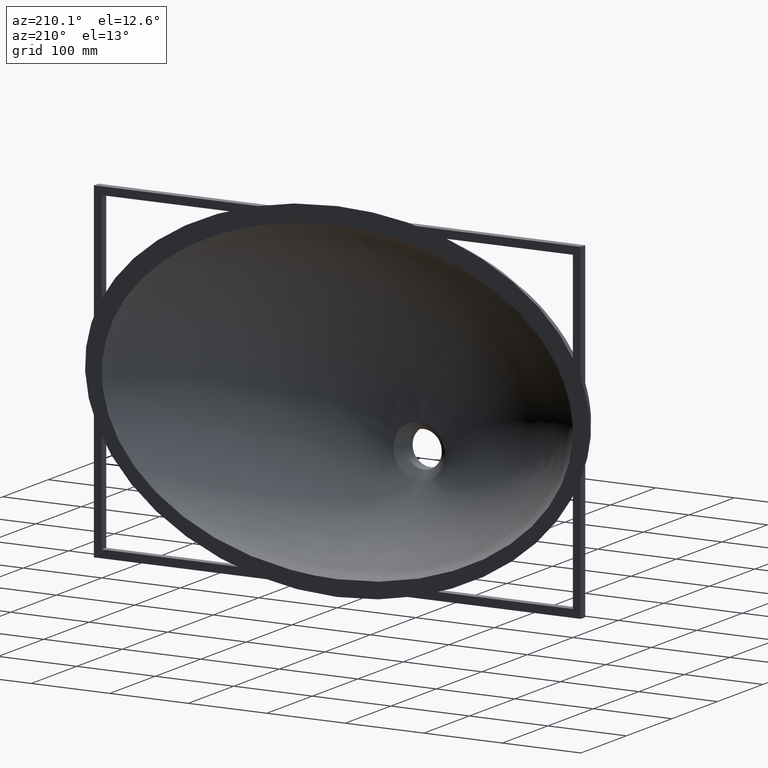
[diagram: clean part render]
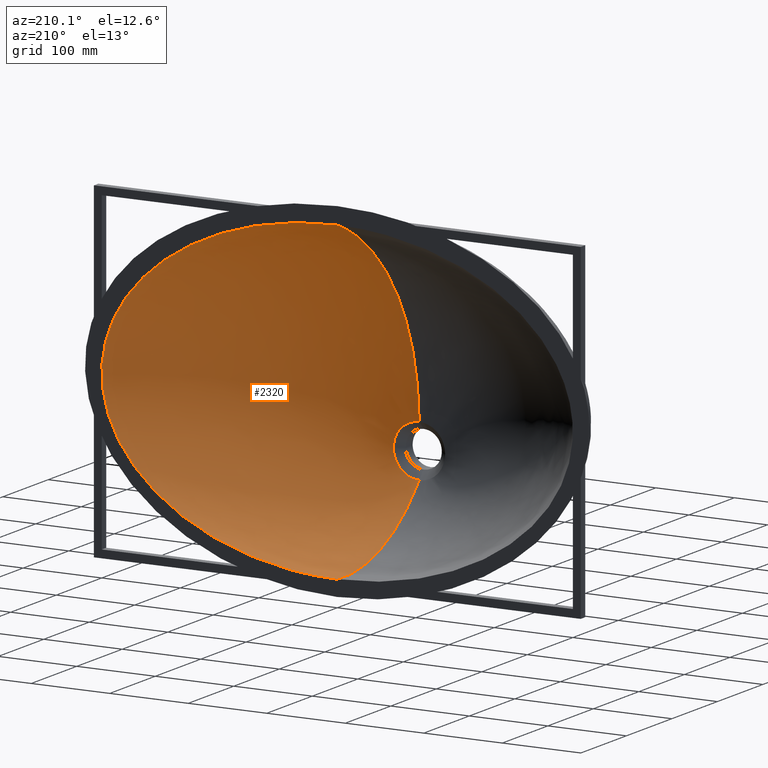
[diagram: same view with one face highlighted and labeled with its STEP entity id]
A machine part, auxiliary view. The second image highlights one B-rep face of the part: STEP entity #2320.
In plain terms, the highlighted face is a freeform B-spline surface patch.
Its self-contained STEP definition (entity closure, byte-faithful):
#13 = CARTESIAN_POINT ( 'NONE',  ( 30.62851679631153700, -97.37927551791051400, 144.0688061698451700 ) ) ;
#17 = CARTESIAN_POINT ( 'NONE',  ( 133.0484152298465700, 0.0000000000000000000, -180.0992919159568300 ) ) ;
#29 = CARTESIAN_POINT ( 'NONE',  ( -23.68704373531275200, 0.0000000000000000000, -199.7357332564771500 ) ) ;
#40 = CARTESIAN_POINT ( 'NONE',  ( 141.6678652974461000, -160.6817231114279100, -34.63989863947544700 ) ) ;
#58 = CARTESIAN_POINT ( 'NONE',  ( -44.77001884066132200, -161.9825538305535700, 48.43875581491031600 ) ) ;
#75 = CARTESIAN_POINT ( 'NONE',  ( 3.947687083879967100, 0.0000000000000000000, -199.9999999999999400 ) ) ;
#93 = CARTESIAN_POINT ( 'NONE',  ( -113.9103814101593500, -163.3450816644534600, 12.93355137761201600 ) ) ;
#100 = CARTESIAN_POINT ( 'NONE',  ( 160.5146964287965000, -39.54910153398023500, -165.5320030992913900 ) ) ;
#107 = CARTESIAN_POINT ( 'NONE',  ( -6.362098348144940000E-013, 0.0000000000000000000, -199.9999999999999400 ) ) ;
#117 = CARTESIAN_POINT ( 'NONE',  ( -213.5339019161863500, 0.0000000000000000000, 142.3539857734975600 ) ) ;
#143 = CARTESIAN_POINT ( 'NONE',  ( -37.27941684999111500, -179.7290180102834500, -6.896853647755000000 ) ) ;
#160 = CARTESIAN_POINT ( 'NONE',  ( 270.1489477475109300, 0.0000000000000000000, 88.69899296314076800 ) ) ;
#202 = CARTESIAN_POINT ( 'NONE',  ( 230.4484406398126200, -92.38385585762428300, -64.07311742500880300 ) ) ;
#212 = CARTESIAN_POINT ( 'NONE',  ( -6.362098348144940000E-013, 0.0000000000000000000, -199.9999999999999400 ) ) ;
#217 = CARTESIAN_POINT ( 'NONE',  ( 299.2574925619122700, 0.0000000000000000000, 23.02731537193677600 ) ) ;
#220 = CARTESIAN_POINT ( 'NONE',  ( -2.771184904616170300, -179.0625244724810700, -0.8907801591708891500 ) ) ;
#229 = CARTESIAN_POINT ( 'NONE',  ( 23.59494529622731600, -180.0000000000001700, -113.3876014543634300 ) ) ;
#239 = CARTESIAN_POINT ( 'NONE',  ( 32.42873320077608000, -180.0000000000014500, -83.07162615420222100 ) ) ;
#254 = CARTESIAN_POINT ( 'NONE',  ( -7.666800387143238600, -157.8209052816051800, -149.1971891307944100 ) ) ;
#270 = CARTESIAN_POINT ( 'NONE',  ( 292.5809894682097400, 0.0000000000000000000, -52.59516732166746800 ) ) ;
#283 = CARTESIAN_POINT ( 'NONE',  ( -30.42152481965786100, -180.0000000000008800, -76.93615707423647600 ) ) ;
#298 = CARTESIAN_POINT ( 'NONE',  ( 300.7422975368905300, 0.0000000000000000000, -16.44808241169922500 ) ) ;
#312 = CARTESIAN_POINT ( 'NONE',  ( -3.358083169826622200, -180.0000000000000000, -122.9239631104298800 ) ) ;
#314 = CARTESIAN_POINT ( 'NONE',  ( -21.71245729774489800, -34.44061058370849100, -201.8489340728664800 ) ) ;
#330 = CARTESIAN_POINT ( 'NONE',  ( -2.817082504769086200E-011, -157.7759367792934000, -149.3375365825513400 ) ) ;
#332 = CARTESIAN_POINT ( 'NONE',  ( 0.001907116680566409800, -161.4601590922618500, 53.27787706992665300 ) ) ;
#343 = CARTESIAN_POINT ( 'NONE',  ( -76.89923280782765900, -70.60404970947662700, -186.6803127599805200 ) ) ;
#356 = CARTESIAN_POINT ( 'NONE',  ( -210.7306577532258100, -100.1828451426668900, 54.25402693778501400 ) ) ;
#368 = CARTESIAN_POINT ( 'NONE',  ( -38.27833739842476000, -97.45881928544704900, 143.2520732158170300 ) ) ;
#373 = CARTESIAN_POINT ( 'NONE',  ( 175.1323095684038500, 0.0000000000000000000, -163.2848421583269400 ) ) ;
#391 = CARTESIAN_POINT ( 'NONE',  ( -53.16030504817634000, 0.0000000000000000000, -197.3820846924904800 ) ) ;
#401 = CARTESIAN_POINT ( 'NONE',  ( 126.2090113669983000, -163.0597354177518500, -0.9439889273431415500 ) ) ;
#415 = CARTESIAN_POINT ( 'NONE',  ( -81.05383703113876900, -162.8721174194236000, 35.48709314873519800 ) ) ;
#431 = CARTESIAN_POINT ( 'NONE',  ( 17.21520042557200000, -158.2118810375539200, -147.9587899117662200 ) ) ;
#439 = CARTESIAN_POINT ( 'NONE',  ( 246.0829249203361800, -54.91539842589114800, 75.84437400029945300 ) ) ;
#450 = CARTESIAN_POINT ( 'NONE',  ( -136.6552091126917200, -162.2653466515104100, -17.63439621009438300 ) ) ;
#454 = CARTESIAN_POINT ( 'NONE',  ( 120.8864409390117800, -53.21082431389606900, 161.3172787664667900 ) ) ;
#468 = CARTESIAN_POINT ( 'NONE',  ( -270.1489477475099600, 0.0000000000000000000, 88.69899296314172000 ) ) ;
#494 = CARTESIAN_POINT ( 'NONE',  ( 88.53231294492513800, -174.2994084901815500, -83.11848532869626600 ) ) ;
#506 = EDGE_CURVE ( 'NONE', #1978, #2625, #2274, .T. ) ;
#513 = CARTESIAN_POINT ( 'NONE',  ( 133.0484894441825600, 0.0000000000000000000, 180.0992985005259500 ) ) ;
#573 = CARTESIAN_POINT ( 'NONE',  ( 292.5809894682097400, 0.0000000000000000000, -52.59516732166746800 ) ) ;
#576 = CARTESIAN_POINT ( 'NONE',  ( -3.366892268458210300E-011, -180.0000000000000000, -123.0000000000000000 ) ) ;
#583 = CARTESIAN_POINT ( 'NONE',  ( 53.16030504817469900, 0.0000000000000000000, -197.3820846924896000 ) ) ;
#590 = CARTESIAN_POINT ( 'NONE',  ( 32.46289889102562400, -179.9999999999999100, -96.65392954724447300 ) ) ;
#604 = CARTESIAN_POINT ( 'NONE',  ( -82.97589318563584000, -171.1174015192978000, -98.10234112503286500 ) ) ;
#613 = B_SPLINE_CURVE_WITH_KNOTS ( 'NONE', 3,
 ( #4383, #2306, #2511, #2650, #890, #1103 ),
 .UNSPECIFIED., .F., .F.,
 ( 4, 2, 4 ),
 ( 0.0000000000000000000, 0.5000000000000002200, 1.000000000000000000 ),
 .UNSPECIFIED. ) ;
#614 = CARTESIAN_POINT ( 'NONE',  ( 79.83662190680274800, -52.65717524612522000, 173.0229932725299300 ) ) ;
#622 = CARTESIAN_POINT ( 'NONE',  ( 7.827853848500442500, -180.0000000000000600, -57.83467544628651800 ) ) ;
#638 = CARTESIAN_POINT ( 'NONE',  ( -33.42517482253837400, -179.9999999999996600, -89.38040627222362400 ) ) ;
#664 = CARTESIAN_POINT ( 'NONE',  ( -0.5591509092855130300, -180.0000000000000000, -122.9999999999999900 ) ) ;
#666 = CARTESIAN_POINT ( 'NONE',  ( -6.134415891922984100E-012, -34.39614108334804100, -202.1166714080390800 ) ) ;
#681 = CARTESIAN_POINT ( 'NONE',  ( 1.277333125506626000, -157.7759367792937700, -149.3375365825511700 ) ) ;
#690 = CARTESIAN_POINT ( 'NONE',  ( 213.1051608682962000, -87.80728554339805200, -95.61939303891647100 ) ) ;
#704 = CARTESIAN_POINT ( 'NONE',  ( -234.5570022050948200, -98.33807761591940300, 0.04118577792155508900 ) ) ;
#723 = CARTESIAN_POINT ( 'NONE',  ( -103.3031472153192000, -98.51247416659144600, 128.5941958164161200 ) ) ;
#738 = CARTESIAN_POINT ( 'NONE',  ( 133.0484152298465700, 0.0000000000000000000, -180.0992919159568300 ) ) ;
#740 = CARTESIAN_POINT ( 'NONE',  ( 81.05383703161081100, -162.8721174193596800, 35.48709314837878300 ) ) ;
#744 = CARTESIAN_POINT ( 'NONE',  ( -175.1323095684060400, 0.0000000000000000000, -163.2848421583254900 ) ) ;
#752 = CARTESIAN_POINT ( 'NONE',  ( 98.97893554226178000, -163.2623405173285700, 25.38617543603663400 ) ) ;
#767 = CARTESIAN_POINT ( 'NONE',  ( -4.561925418161316700, -161.4175867910486800, 53.60196125593866900 ) ) ;
#769 = CARTESIAN_POINT ( 'NONE',  ( -27.76718832218750100, -180.0000000000002300, -108.4112222054621500 ) ) ;
#784 = CARTESIAN_POINT ( 'NONE',  ( 23.68704373531135900, 0.0000000000000000000, -199.7357332564770000 ) ) ;
#789 = CARTESIAN_POINT ( 'NONE',  ( 273.2439289733050600, -54.00449297039346400, 14.07933530448528400 ) ) ;
#803 = CARTESIAN_POINT ( 'NONE',  ( -143.6280754539319800, -157.8859994199439400, -56.10777746400356100 ) ) ;
#814 = CARTESIAN_POINT ( 'NONE',  ( 7.827853848500442500, -180.0000000000000600, -57.83467544628651800 ) ) ;
#823 = CARTESIAN_POINT ( 'NONE',  ( -299.2574925619124400, 0.0000000000000000000, 23.02731537193735500 ) ) ;
#829 = B_SPLINE_SURFACE_WITH_KNOTS ( 'NONE', 3, 3, ( 
 ( #3106, #664, #312, #2411, #2713, #1477, #3216, #769, #2870, #2522, #638, #2727, #283, #2378, #4472, #2031, #4115, #1675, #3762, #1321, #3413, #975, #3075, #622, #4442, #3715, #1631, #4068, #1982, #4426, #2332, #239, #2687, #590, #3047, #946, #3386, #1296, #3730, #1648, #4083, #2001, #576 ),
 ( #1282, #2346, #254, #3701, #4407, #1961, #4051, #1614, #2700, #604, #3371, #3031, #2596, #2241, #4331, #1887, #3975, #931, #143, #3458, #2674, #220, #2317, #4344, #1902, #3991, #1554, #3633, #1203, #3292, #848, #2954, #494, #3556, #4166, #1828, #4269, #1475, #2538, #431, #2181, #681, #330 ),
 ( #1033, #2777, #2197, #4283, #1839, #3934, #1493, #3569, #1138, #3228, #2887, #803, #2902, #450, #2551, #93, #2137, #415, #2520, #58, #2168, #767, #2868, #1155, #3245, #740, #752, #2852, #401, #2500, #40, #2155, #4238, #1798, #3892, #1442, #3521, #1094, #3185, #3197, #1455, #1424, #4252 ),
 ( #1782, #912, #3012, #2791, #343, #2443, #4539, #2094, #4178, #1737, #1381, #3829, #704, #2806, #356, #3506, #1077, #3174, #723, #2820, #368, #2474, #13, #2124, #4211, #1769, #3861, #1409, #3494, #1061, #3160, #3878, #202, #690, #1160, #1894, #3980, #1544, #3135, #1028, #1352, #1016, #3122 ),
 ( #666, #2761, #314, #2414, #4507, #2063, #4148, #1706, #3796, #3442, #3468, #2458, #4556, #2110, #4195, #1753, #3846, #1394, #3482, #1048, #3148, #3591, #3512, #614, #454, #2543, #2907, #3233, #439, #1499, #789, #1144, #4289, #1844, #3938, #3574, #100, #2202, #1482, #4275, #3925, #4229, #1832 ),
 ( #1787, #2145, #29, #391, #2491, #2842, #744, #1099, #3190, #3526, #1269, #3263, #823, #2926, #468, #2570, #117, #2217, #4305, #1862, #3955, #1515, #2245, #3867, #2129, #1692, #2364, #4429, #2588, #1398, #2396, #298, #270, #4492, #1414, #2827, #373, #17, #1772, #583, #784, #75, #212 ) ),
 .UNSPECIFIED., .F., .T., .F.,
 ( 4, 2, 4 ),
 ( 4, 1, 1, 1, 1, 1, 1, 1, 1, 1, 1, 1, 1, 1, 1, 1, 1, 1, 1, 1, 1, 1, 1, 1, 1, 1, 1, 1, 1, 1, 1, 1, 1, 1, 1, 1, 1, 1, 1, 1, 4 ),
 ( 0.0000000000000000000, 0.5000000000000002200, 1.000000000000000000 ),
 ( 0.0000000000000000000, 0.006250000000000088800, 0.03125000000000000000, 0.04687500000000000000, 0.07812500000000000000, 0.09375000000000000000, 0.1250000000000000000, 0.1562500000000000000, 0.1718750000000000000, 0.2031250000000000000, 0.2500000000002257100, 0.2578125000000000000, 0.2968750000000000000, 0.3281250000000000000, 0.3437500000000000000, 0.3750000000000000000, 0.4062500000000000000, 0.4218750000000000000, 0.4531250000000000000, 0.4687500000000000000, 0.5000000000014922500, 0.5156250000000000000, 0.5468750000000000000, 0.5781250000000000000, 0.5937500000000000000, 0.6250000000000000000, 0.6562500000000000000, 0.6718750000000000000, 0.7031250000000000000, 0.7421875000000000000, 0.7500000000000441900, 0.7968750000000000000, 0.8281250000000000000, 0.8437500000000000000, 0.8750000000000000000, 0.9062500000000000000, 0.9218750000000000000, 0.9531250000000000000, 0.9687500000000000000, 0.9937500000000000200, 1.000000000000000000 ),
 .UNSPECIFIED. ) ;
#848 = CARTESIAN_POINT ( 'NONE',  ( 87.46565515669610100, -178.6074066610750900, -55.16236149282986600 ) ) ;
#860 = CARTESIAN_POINT ( 'NONE',  ( 0.0006090488212856985700, -97.29973175039937400, 144.8845770654309900 ) ) ;
#869 = VERTEX_POINT ( 'NONE', #4456 ) ;
#890 = CARTESIAN_POINT ( 'NONE',  ( -6.134415891922984100E-012, -34.39614108334804100, -202.1166714080390800 ) ) ;
#912 = CARTESIAN_POINT ( 'NONE',  ( -3.130483728718445500, -68.28410947299418900, -196.0354396993149100 ) ) ;
#931 = CARTESIAN_POINT ( 'NONE',  ( -49.15305958159226700, -180.0623304526111200, -11.76637343533105100 ) ) ;
#946 = CARTESIAN_POINT ( 'NONE',  ( 27.76718832000404200, -179.9999999999992600, -108.4112222086910700 ) ) ;
#975 = CARTESIAN_POINT ( 'NONE',  ( -0.8913734349168005400, -180.0000000000000300, -56.92234772382217800 ) ) ;
#1016 = CARTESIAN_POINT ( 'NONE',  ( 3.130483728695129500, -68.28410947299526900, -196.0354396993145400 ) ) ;
#1028 = CARTESIAN_POINT ( 'NONE',  ( 42.16404791463291000, -68.92888990183442400, -193.5486251386794500 ) ) ;
#1033 = CARTESIAN_POINT ( 'NONE',  ( -2.265440439408461500E-011, -129.9740073209674200, -169.6458722865709200 ) ) ;
#1045 = CARTESIAN_POINT ( 'NONE',  ( 96.94433853191156900, 0.0000000000000000000, -190.0690652849763500 ) ) ;
#1048 = CARTESIAN_POINT ( 'NONE',  ( -88.04658571353974100, -52.76790505972464000, 170.6818503712919200 ) ) ;
#1061 = CARTESIAN_POINT ( 'NONE',  ( 227.3075405889096300, -99.68318506992534400, 27.07328484727860700 ) ) ;
#1077 = CARTESIAN_POINT ( 'NONE',  ( -166.0299553394990500, -99.84353210566614200, 97.93257292737610000 ) ) ;
#1092 = CARTESIAN_POINT ( 'NONE',  ( 213.5309949853090900, 0.0000000000000000000, -142.3559360581180600 ) ) ;
#1094 = CARTESIAN_POINT ( 'NONE',  ( 65.92282241631349400, -134.4309624040288600, -155.8996327894089100 ) ) ;
#1099 = CARTESIAN_POINT ( 'NONE',  ( -213.5309949853119100, 0.0000000000000000000, -142.3559360581172100 ) ) ;
#1103 = CARTESIAN_POINT ( 'NONE',  ( -6.362098348144940000E-013, 0.0000000000000000000, -199.9999999999999400 ) ) ;
#1138 = CARTESIAN_POINT ( 'NONE',  ( -119.3944931493502800, -145.5726249028687400, -115.3241793735648500 ) ) ;
#1144 = CARTESIAN_POINT ( 'NONE',  ( 274.9262366242443200, -52.44657188596875800, -23.36509175872312500 ) ) ;
#1155 = CARTESIAN_POINT ( 'NONE',  ( 40.58761475776945800, -161.8810025909247400, 49.64696411349402200 ) ) ;
#1160 = CARTESIAN_POINT ( 'NONE',  ( 193.4529004495547300, -83.81776778851755700, -120.3616009264803400 ) ) ;
#1203 = CARTESIAN_POINT ( 'NONE',  ( 77.03963214661345700, -180.2088578991371200, -33.89442152385341700 ) ) ;
#1248 = CARTESIAN_POINT ( 'NONE',  ( 87.91870735431484700, 0.0000000000000000000, 192.5615437062534200 ) ) ;
#1261 = CARTESIAN_POINT ( 'NONE',  ( 13.66035870139092800, -179.9999999999999100, -120.2357383966014300 ) ) ;
#1269 = CARTESIAN_POINT ( 'NONE',  ( -292.5809894682122900, 0.0000000000000000000, -52.59516732166766000 ) ) ;
#1282 = CARTESIAN_POINT ( 'NONE',  ( -2.817082504769086200E-011, -157.7759367792934000, -149.3375365825513400 ) ) ;
#1296 = CARTESIAN_POINT ( 'NONE',  ( 18.47833712715247100, -180.0000000000000000, -117.5857977394843200 ) ) ;
#1321 = CARTESIAN_POINT ( 'NONE',  ( -8.630986909087132700, -180.0000000000000600, -58.09754877412265000 ) ) ;
#1352 = CARTESIAN_POINT ( 'NONE',  ( 18.78457576497277500, -68.35065805414473100, -195.7834970318492400 ) ) ;
#1381 = CARTESIAN_POINT ( 'NONE',  ( -230.4484406397580200, -92.38385585758889800, -64.07311742325711600 ) ) ;
#1394 = CARTESIAN_POINT ( 'NONE',  ( -159.1894038757303600, -53.79950193225269600, 145.5733258212020500 ) ) ;
#1398 = CARTESIAN_POINT ( 'NONE',  ( 290.7116523216593000, 0.0000000000000000000, 55.60381943186168700 ) ) ;
#1409 = CARTESIAN_POINT ( 'NONE',  ( 190.7108429626331900, -100.1957264567687700, 77.14991724248690700 ) ) ;
#1414 = CARTESIAN_POINT ( 'NONE',  ( 244.9272598765362500, 0.0000000000000000000, -116.7548402648084100 ) ) ;
#1424 = CARTESIAN_POINT ( 'NONE',  ( 1.959886959340268800, -129.9740073209679300, -169.6458722865706900 ) ) ;
#1442 = CARTESIAN_POINT ( 'NONE',  ( 104.6905342605107900, -141.4926183942565700, -131.3241861999152600 ) ) ;
#1455 = CARTESIAN_POINT ( 'NONE',  ( 11.76174730961399100, -130.0402333535991200, -169.4568078012642300 ) ) ;
#1475 = CARTESIAN_POINT ( 'NONE',  ( 42.80841946068474600, -160.8019276534126600, -139.2321505296365000 ) ) ;
#1477 = CARTESIAN_POINT ( 'NONE',  ( -18.47833712919976900, -180.0000000000000300, -117.5857977381858900 ) ) ;
#1482 = CARTESIAN_POINT ( 'NONE',  ( 88.88454331179073600, -35.94354786580019800, -192.1241197069280100 ) ) ;
#1485 = CARTESIAN_POINT ( 'NONE',  ( 9.868849444056490200, 0.0000000000000000000, 199.9999300213351300 ) ) ;
#1493 = CARTESIAN_POINT ( 'NONE',  ( -86.35485843941265200, -137.7200938364385900, -144.8001181853176100 ) ) ;
#1499 = CARTESIAN_POINT ( 'NONE',  ( 265.1348743066112100, -54.75788719565487400, 44.78144439945582900 ) ) ;
#1515 = CARTESIAN_POINT ( 'NONE',  ( -9.868849444998252500, 0.0000000000000000000, 200.6598433252850700 ) ) ;
#1544 = CARTESIAN_POINT ( 'NONE',  ( 105.5147037308495800, -72.74835838949150000, -177.4150374283212600 ) ) ;
#1554 = CARTESIAN_POINT ( 'NONE',  ( 60.07398361208596800, -180.3332206945752300, -17.83493817502505200 ) ) ;
#1570 = ORIENTED_EDGE ( 'NONE', *, *, #3349, .T. ) ;
#1609 = CARTESIAN_POINT ( 'NONE',  ( 3.358083169651561800, -180.0000000000000000, -122.9239631104486300 ) ) ;
#1614 = CARTESIAN_POINT ( 'NONE',  ( -67.21420874432301700, -165.5953818464513700, -121.5238251106116800 ) ) ;
#1631 = CARTESIAN_POINT ( 'NONE',  ( 19.19833677739192600, -180.0000000000001400, -62.98287969724712800 ) ) ;
#1648 = CARTESIAN_POINT ( 'NONE',  ( 7.544990380278503200, -180.0000000000000600, -122.2542045338232100 ) ) ;
#1675 = CARTESIAN_POINT ( 'NONE',  ( -15.64343798680047800, -180.0000000000002800, -60.86997401931124300 ) ) ;
#1692 = CARTESIAN_POINT ( 'NONE',  ( 175.1322599664756300, 0.0000000000000000000, 163.2848377583363500 ) ) ;
#1706 = CARTESIAN_POINT ( 'NONE',  ( -195.6017426889595200, -42.03389196280574000, -144.9657484964654400 ) ) ;
#1725 = CARTESIAN_POINT ( 'NONE',  ( 30.42152482169818800, -179.9999999999986400, -76.93615707901396700 ) ) ;
#1737 = CARTESIAN_POINT ( 'NONE',  ( -213.1051608685910700, -87.80728554334403700, -95.61939303733450400 ) ) ;
#1753 = CARTESIAN_POINT ( 'NONE',  ( -222.8958426904642900, -54.76224649216470700, 102.1041013916900100 ) ) ;
#1769 = CARTESIAN_POINT ( 'NONE',  ( 136.0720091782593200, -99.20798206813148600, 114.9175501123981600 ) ) ;
#1772 = CARTESIAN_POINT ( 'NONE',  ( 96.94433853191156900, 0.0000000000000000000, -190.0690652849763500 ) ) ;
#1782 = CARTESIAN_POINT ( 'NONE',  ( -1.163023670425200600E-011, -68.28410947299474300, -196.0354396993147400 ) ) ;
#1787 = CARTESIAN_POINT ( 'NONE',  ( -6.362098348144940000E-013, 0.0000000000000000000, -199.9999999999999400 ) ) ;
#1798 = CARTESIAN_POINT ( 'NONE',  ( 130.9580197639533300, -149.6304612125996100, -98.16413316535954400 ) ) ;
#1828 = CARTESIAN_POINT ( 'NONE',  ( 67.21420874252528700, -165.5953818464846000, -121.5238251132831900 ) ) ;
#1832 = CARTESIAN_POINT ( 'NONE',  ( -6.134415891922984100E-012, -34.39614108334804100, -202.1166714080390800 ) ) ;
#1839 = CARTESIAN_POINT ( 'NONE',  ( -48.12282495630763200, -132.2874844231616900, -162.6964317694355500 ) ) ;
#1844 = CARTESIAN_POINT ( 'NONE',  ( 247.2701753934839200, -47.30676471694732000, -92.77829774147134900 ) ) ;
#1862 = CARTESIAN_POINT ( 'NONE',  ( -96.94466377228847900, 0.0000000000000000000, 190.0690946651085100 ) ) ;
#1887 = CARTESIAN_POINT ( 'NONE',  ( -69.29491958649458600, -180.3959493709639300, -25.37914735658584300 ) ) ;
#1894 = CARTESIAN_POINT ( 'NONE',  ( 168.8843012335619000, -79.78194951541789200, -143.1452009372495100 ) ) ;
#1902 = CARTESIAN_POINT ( 'NONE',  ( 37.27941685026240000, -179.7290180102411300, -6.896853647905987600 ) ) ;
#1955 = CARTESIAN_POINT ( 'NONE',  ( -3.366892268458210300E-011, -180.0000000000000000, -123.0000000000000000 ) ) ;
#1961 = CARTESIAN_POINT ( 'NONE',  ( -42.80841946238038500, -160.8019276533897800, -139.2321505285669900 ) ) ;
#1973 = CARTESIAN_POINT ( 'NONE',  ( 32.46289889102562400, -179.9999999999999100, -96.65392954724447300 ) ) ;
#1978 = VERTEX_POINT ( 'NONE', #4488 ) ;
#1982 = CARTESIAN_POINT ( 'NONE',  ( 25.33938521162226100, -180.0000000000000000, -68.69010421356789200 ) ) ;
#2001 = CARTESIAN_POINT ( 'NONE',  ( 0.5591509092181651300, -180.0000000000000000, -123.0000000000000000 ) ) ;
#2031 = CARTESIAN_POINT ( 'NONE',  ( -22.40258144656322900, -179.9999999999998300, -65.62136975319975800 ) ) ;
#2060 = CARTESIAN_POINT ( 'NONE',  ( 19.19833677739192600, -180.0000000000001400, -62.98287969724712800 ) ) ;
#2063 = CARTESIAN_POINT ( 'NONE',  ( -121.9921820900822400, -37.37075516706684700, -182.1687772210743200 ) ) ;
#2094 = CARTESIAN_POINT ( 'NONE',  ( -168.8843012342462100, -79.78194951536659100, -143.1452009361965500 ) ) ;
#2110 = CARTESIAN_POINT ( 'NONE',  ( -265.1348743062704300, -54.75788719566594400, 44.78144440005383600 ) ) ;
#2124 = CARTESIAN_POINT ( 'NONE',  ( 68.20295365863485400, -97.83328785105817400, 138.7750815599756600 ) ) ;
#2129 = CARTESIAN_POINT ( 'NONE',  ( 133.0484894441825600, 0.0000000000000000000, 180.0992985005259500 ) ) ;
#2137 = CARTESIAN_POINT ( 'NONE',  ( -98.97893554137724000, -163.2623405173856100, 25.38617543675466200 ) ) ;
#2145 = CARTESIAN_POINT ( 'NONE',  ( -3.947687083881310100, 0.0000000000000000000, -199.9999999999999400 ) ) ;
#2155 = CARTESIAN_POINT ( 'NONE',  ( 143.6280754547133500, -157.8859994199693500, -56.10777746747838500 ) ) ;
#2168 = CARTESIAN_POINT ( 'NONE',  ( -22.78674168045285600, -161.5878759959170700, 52.30593042728637000 ) ) ;
#2181 = CARTESIAN_POINT ( 'NONE',  ( 7.666800386997286100, -157.8209052816093600, -149.1971891308078000 ) ) ;
#2197 = CARTESIAN_POINT ( 'NONE',  ( -11.76174730973083800, -130.0402333535929800, -169.4568078012547400 ) ) ;
#2202 = CARTESIAN_POINT ( 'NONE',  ( 121.9921820897569500, -37.37075516709082700, -182.1687772212806900 ) ) ;
#2215 = CARTESIAN_POINT ( 'NONE',  ( 0.003205184704662938900, -180.0000000000000000, -56.99985909931486800 ) ) ;
#2217 = CARTESIAN_POINT ( 'NONE',  ( -175.1322599664740700, 0.0000000000000000000, 163.2848377583370600 ) ) ;
#2241 = CARTESIAN_POINT ( 'NONE',  ( -83.83021135527209800, -179.6767206815408700, -44.28341301125215800 ) ) ;
#2245 = CARTESIAN_POINT ( 'NONE',  ( 39.47539777999489300, 0.0000000000000000000, 199.0100600653314000 ) ) ;
#2274 = B_SPLINE_CURVE_WITH_KNOTS ( 'NONE', 3,
 ( #2215, #4414, #332, #860, #2568, #3544 ),
 .UNSPECIFIED., .F., .F.,
 ( 4, 2, 4 ),
 ( 0.0000000000000000000, 0.5000000000000002200, 1.000000000000000000 ),
 .UNSPECIFIED. ) ;
#2280 = CARTESIAN_POINT ( 'NONE',  ( -3.366892268458210300E-011, -180.0000000000000000, -123.0000000000000000 ) ) ;
#2306 = CARTESIAN_POINT ( 'NONE',  ( -2.817082504769086200E-011, -157.7759367792934000, -149.3375365825513400 ) ) ;
#2308 = CARTESIAN_POINT ( 'NONE',  ( 18.47833712715247100, -180.0000000000000000, -117.5857977394843200 ) ) ;
#2313 = CARTESIAN_POINT ( 'NONE',  ( 270.1489455793212600, 0.0000000000000000000, -88.69899277027612100 ) ) ;
#2317 = CARTESIAN_POINT ( 'NONE',  ( 11.08473961697047400, -179.1354160462847700, -1.381279817556981400 ) ) ;
#2320 = ADVANCED_FACE ( 'NONE', ( #4111 ), #829, .T. ) ;
#2324 = CARTESIAN_POINT ( 'NONE',  ( 27.76718832000404200, -179.9999999999992600, -108.4112222086910700 ) ) ;
#2332 = CARTESIAN_POINT ( 'NONE',  ( 30.42152482169818800, -179.9999999999986400, -76.93615707901396700 ) ) ;
#2346 = CARTESIAN_POINT ( 'NONE',  ( -1.277333125562990300, -157.7759367792930600, -149.3375365825515400 ) ) ;
#2364 = CARTESIAN_POINT ( 'NONE',  ( 213.5339019161868900, 0.0000000000000000000, 142.3539857734967000 ) ) ;
#2378 = CARTESIAN_POINT ( 'NONE',  ( -28.25810526120537200, -180.0000000000004800, -72.57200384176128700 ) ) ;
#2396 = CARTESIAN_POINT ( 'NONE',  ( 299.2574925619122700, 0.0000000000000000000, 23.02731537193677600 ) ) ;
#2410 = CARTESIAN_POINT ( 'NONE',  ( 25.33938521162226100, -180.0000000000000000, -68.69010421356789200 ) ) ;
#2411 = CARTESIAN_POINT ( 'NONE',  ( -7.544990381214235600, -179.9999999999998600, -122.2542045336405900 ) ) ;
#2414 = CARTESIAN_POINT ( 'NONE',  ( -48.73277155911488700, -34.82677317844080300, -199.4698796592469400 ) ) ;
#2443 = CARTESIAN_POINT ( 'NONE',  ( -105.5147037315107900, -72.74835838945658400, -177.4150374279034300 ) ) ;
#2458 = CARTESIAN_POINT ( 'NONE',  ( -274.9262366240393500, -52.44657188595324000, -23.36509175786651900 ) ) ;
#2474 = CARTESIAN_POINT ( 'NONE',  ( -7.657129199377176400, -97.24670257205535500, 145.4285476699807600 ) ) ;
#2491 = CARTESIAN_POINT ( 'NONE',  ( -96.94433853191210900, 0.0000000000000000000, -190.0690652849752100 ) ) ;
#2500 = CARTESIAN_POINT ( 'NONE',  ( 136.6552091142148700, -162.2653466515027100, -17.63439621259486100 ) ) ;
#2511 = CARTESIAN_POINT ( 'NONE',  ( -2.265440439408461500E-011, -129.9740073209674200, -169.6458722865709200 ) ) ;
#2517 = EDGE_CURVE ( 'NONE', #1978, #2824, #2943, .T. ) ;
#2520 = CARTESIAN_POINT ( 'NONE',  ( -61.49963517071181200, -162.3887587888587500, 43.60592262073078700 ) ) ;
#2522 = CARTESIAN_POINT ( 'NONE',  ( -32.46289889206145300, -180.0000000000000600, -96.65392954240209600 ) ) ;
#2538 = CARTESIAN_POINT ( 'NONE',  ( 31.33172760765993900, -159.3467066829278500, -144.2081709105508500 ) ) ;
#2543 = CARTESIAN_POINT ( 'NONE',  ( 159.1894038756735800, -53.79950193219875100, 145.5733258211444400 ) ) ;
#2551 = CARTESIAN_POINT ( 'NONE',  ( -126.2090113655688800, -163.0597354177797600, -0.9439889255478128800 ) ) ;
#2568 = CARTESIAN_POINT ( 'NONE',  ( -3.998503868150881300E-005, -52.23527312224401700, 180.0356098692056400 ) ) ;
#2570 = CARTESIAN_POINT ( 'NONE',  ( -244.9272566397063700, 0.0000000000000000000, 116.7548399773616800 ) ) ;
#2588 = CARTESIAN_POINT ( 'NONE',  ( 270.1489477475109300, 0.0000000000000000000, 88.69899296314076800 ) ) ;
#2596 = CARTESIAN_POINT ( 'NONE',  ( -87.46565515500780900, -178.6074066610719600, -55.16236148886202500 ) ) ;
#2612 = CARTESIAN_POINT ( 'NONE',  ( 175.1322599664756300, 0.0000000000000000000, 163.2848377583363500 ) ) ;
#2625 = VERTEX_POINT ( 'NONE', #3680 ) ;
#2650 = CARTESIAN_POINT ( 'NONE',  ( -1.163023670425200600E-011, -68.28410947299474300, -196.0354396993147400 ) ) ;
#2669 = CARTESIAN_POINT ( 'NONE',  ( 300.7422975368905300, 0.0000000000000000000, -16.44808241169922500 ) ) ;
#2674 = CARTESIAN_POINT ( 'NONE',  ( -13.82525070696824800, -179.1791509905829400, -1.674447275981263000 ) ) ;
#2687 = CARTESIAN_POINT ( 'NONE',  ( 33.42517482258887200, -180.0000000000007100, -89.38040627754708100 ) ) ;
#2700 = CARTESIAN_POINT ( 'NONE',  ( -76.15005845135520700, -168.3642108762727200, -110.1622015726049100 ) ) ;
#2713 = CARTESIAN_POINT ( 'NONE',  ( -13.66035870302287400, -180.0000000000000300, -120.2357383959265500 ) ) ;
#2727 = CARTESIAN_POINT ( 'NONE',  ( -32.42873319962723100, -179.9999999999991800, -83.07162614895385400 ) ) ;
#2761 = CARTESIAN_POINT ( 'NONE',  ( -3.618526664228670000, -34.39614108334767200, -202.1166714080392000 ) ) ;
#2777 = CARTESIAN_POINT ( 'NONE',  ( -1.959886959385612700, -129.9740073209669000, -169.6458722865711500 ) ) ;
#2791 = CARTESIAN_POINT ( 'NONE',  ( -42.16404791494240100, -68.92888990182004200, -193.5486251386246900 ) ) ;
#2806 = CARTESIAN_POINT ( 'NONE',  ( -227.3075405881908800, -99.68318506993769300, 27.07328484849898900 ) ) ;
#2820 = CARTESIAN_POINT ( 'NONE',  ( -75.22299237031350600, -97.96912511421234600, 136.7389044112297000 ) ) ;
#2824 = VERTEX_POINT ( 'NONE', #2280 ) ;
#2827 = CARTESIAN_POINT ( 'NONE',  ( 213.5309949853090900, 0.0000000000000000000, -142.3559360581180600 ) ) ;
#2834 = CARTESIAN_POINT ( 'NONE',  ( 175.1323095684038500, 0.0000000000000000000, -163.2848421583269400 ) ) ;
#2835 = CARTESIAN_POINT ( 'NONE',  ( 0.8913734342908012900, -180.0000000000000000, -57.00000958265415100 ) ) ;
#2838 = ORIENTED_EDGE ( 'NONE', *, *, #2517, .F. ) ;
#2842 = CARTESIAN_POINT ( 'NONE',  ( -133.0484152298468000, 0.0000000000000000000, -180.0992919159578800 ) ) ;
#2852 = CARTESIAN_POINT ( 'NONE',  ( 113.9103814113707800, -163.3450816644089200, 12.93355137639642300 ) ) ;
#2868 = CARTESIAN_POINT ( 'NONE',  ( 18.24770167109497600, -161.5240175440767400, 52.79165519234742000 ) ) ;
#2870 = CARTESIAN_POINT ( 'NONE',  ( -30.62874743710865400, -179.9999999999998900, -102.6526537851246800 ) ) ;
#2887 = CARTESIAN_POINT ( 'NONE',  ( -140.8726844921832800, -154.3215915480972700, -76.58308768527859900 ) ) ;
#2902 = CARTESIAN_POINT ( 'NONE',  ( -141.6678652961070100, -160.6817231114219500, -34.63989863631540100 ) ) ;
#2907 = CARTESIAN_POINT ( 'NONE',  ( 194.1760232071410100, -54.36797934906913100, 126.0122984857097800 ) ) ;
#2915 = CARTESIAN_POINT ( 'NONE',  ( 11.84351915189480500, -180.0000000000000900, -59.14904208550300500 ) ) ;
#2926 = CARTESIAN_POINT ( 'NONE',  ( -290.7116523216570800, 0.0000000000000000000, 55.60381943186195000 ) ) ;
#2932 = CARTESIAN_POINT ( 'NONE',  ( -0.0006890187848275614600, 0.0000000000000000000, 199.9997437728862900 ) ) ;
#2943 = B_SPLINE_CURVE_WITH_KNOTS ( 'NONE', 3,
 ( #4522, #2835, #3254, #814, #2915, #4145, #2060, #4504, #2410, #3816, #1725, #4169, #4062, #1973, #4418, #2324, #229, #2308, #1261, #3695, #1609, #4042, #1955 ),
 .UNSPECIFIED., .F., .F.,
 ( 4, 1, 1, 1, 1, 1, 1, 1, 1, 1, 1, 1, 1, 1, 1, 1, 1, 1, 1, 1, 4 ),
 ( 0.5000000000000021100, 0.5156249999985563800, 0.5468749999986495200, 0.5781249999987426700, 0.5937499999987893000, 0.6249999999988824500, 0.6562499999989754900, 0.6718749999990221200, 0.7031249999991152600, 0.7421874999992316100, 0.7499999999992991200, 0.7968749999993946000, 0.8281249999994877400, 0.8437499999995343700, 0.8749999999996274100, 0.9062499999997206700, 0.9218749999997671900, 0.9531249999998603300, 0.9687499999999068500, 0.9937499999999813700, 1.000000000000000000 ),
 .UNSPECIFIED. ) ;
#2954 = CARTESIAN_POINT ( 'NONE',  ( 89.45771482700777700, -176.7152390448106000, -69.30108847032570900 ) ) ;
#3010 = CARTESIAN_POINT ( 'NONE',  ( 244.9272566397063100, 0.0000000000000000000, 116.7548399773610600 ) ) ;
#3012 = CARTESIAN_POINT ( 'NONE',  ( -18.78457576503166100, -68.35065805413830700, -195.7834970318455400 ) ) ;
#3028 = CARTESIAN_POINT ( 'NONE',  ( 290.7116523216593000, 0.0000000000000000000, 55.60381943186168700 ) ) ;
#3031 = CARTESIAN_POINT ( 'NONE',  ( -89.45771482604166600, -176.7152390447924700, -69.30108846596692700 ) ) ;
#3047 = CARTESIAN_POINT ( 'NONE',  ( 30.62874743537653200, -180.0000000000005700, -102.6526537892982000 ) ) ;
#3075 = CARTESIAN_POINT ( 'NONE',  ( 3.565493738314427000, -179.9999999999999100, -57.11650237091133400 ) ) ;
#3106 = CARTESIAN_POINT ( 'NONE',  ( -3.366892268458210300E-011, -180.0000000000000000, -123.0000000000000000 ) ) ;
#3122 = CARTESIAN_POINT ( 'NONE',  ( -1.163023670425200600E-011, -68.28410947299474300, -196.0354396993147400 ) ) ;
#3135 = CARTESIAN_POINT ( 'NONE',  ( 76.89923280729510700, -70.60404970950243400, -186.6803127601960200 ) ) ;
#3146 = CARTESIAN_POINT ( 'NONE',  ( 53.16030504817469900, 0.0000000000000000000, -197.3820846924896000 ) ) ;
#3148 = CARTESIAN_POINT ( 'NONE',  ( -44.80844214291202800, -52.35974204638967000, 178.1636880203912200 ) ) ;
#3160 = CARTESIAN_POINT ( 'NONE',  ( 234.5570022057505100, -98.33807761592376600, 0.04118577635977313500 ) ) ;
#3174 = CARTESIAN_POINT ( 'NONE',  ( -136.0720091782078200, -99.20798206820443000, 114.9175501125421900 ) ) ;
#3184 = CARTESIAN_POINT ( 'NONE',  ( 244.9272598765362500, 0.0000000000000000000, -116.7548402648084100 ) ) ;
#3185 = CARTESIAN_POINT ( 'NONE',  ( 48.12282495522971000, -132.2874844231865600, -162.6964317698736700 ) ) ;
#3190 = CARTESIAN_POINT ( 'NONE',  ( -244.9272598765344100, 0.0000000000000000000, -116.7548402648085600 ) ) ;
#3197 = CARTESIAN_POINT ( 'NONE',  ( 26.40526234793881600, -130.6160451142888000, -167.7853720966260800 ) ) ;
#3216 = CARTESIAN_POINT ( 'NONE',  ( -23.59494529848461800, -179.9999999999998300, -113.3876014521459900 ) ) ;
#3228 = CARTESIAN_POINT ( 'NONE',  ( -130.9580197645990400, -149.6304612125465800, -98.16413316216539900 ) ) ;
#3233 = CARTESIAN_POINT ( 'NONE',  ( 222.8958426906562800, -54.76224649212483100, 102.1041013914182800 ) ) ;
#3245 = CARTESIAN_POINT ( 'NONE',  ( 61.49963517074895900, -162.3887587887966500, 43.60592262062768000 ) ) ;
#3254 = CARTESIAN_POINT ( 'NONE',  ( 3.565493738233127500, -179.9999999999999100, -57.11650237089764200 ) ) ;
#3263 = CARTESIAN_POINT ( 'NONE',  ( -300.7422975368904200, 0.0000000000000000000, -16.44808241169866400 ) ) ;
#3292 = CARTESIAN_POINT ( 'NONE',  ( 83.83021135722154300, -179.6767206815350700, -44.28341301440482900 ) ) ;
#3306 = CARTESIAN_POINT ( 'NONE',  ( 39.47539777906958100, 0.0000000000000000000, 199.0100600654545500 ) ) ;
#3309 = ORIENTED_EDGE ( 'NONE', *, *, #506, .T. ) ;
#3349 = EDGE_CURVE ( 'NONE', #2625, #869, #3515, .T. ) ;
#3371 = CARTESIAN_POINT ( 'NONE',  ( -88.53231294486408800, -174.2994084901572200, -83.11848532427583800 ) ) ;
#3386 = CARTESIAN_POINT ( 'NONE',  ( 23.59494529622731600, -180.0000000000001700, -113.3876014543634300 ) ) ;
#3413 = CARTESIAN_POINT ( 'NONE',  ( -4.418404952781283000, -179.9999999999999400, -57.23118935904930300 ) ) ;
#3442 = CARTESIAN_POINT ( 'NONE',  ( -247.2701753936198900, -47.30676471691077700, -92.77829774068587200 ) ) ;
#3458 = CARTESIAN_POINT ( 'NONE',  ( -27.14063865423537100, -179.4499098857294000, -3.998296155145640200 ) ) ;
#3468 = CARTESIAN_POINT ( 'NONE',  ( -267.6838252400136200, -50.28378498317522400, -57.89843870927137500 ) ) ;
#3480 = CARTESIAN_POINT ( 'NONE',  ( 23.68704373531135900, 0.0000000000000000000, -199.7357332564770000 ) ) ;
#3482 = CARTESIAN_POINT ( 'NONE',  ( -120.8864409392058700, -53.21082431394809500, 161.3172787664642600 ) ) ;
#3494 = CARTESIAN_POINT ( 'NONE',  ( 210.7306577538596200, -100.1828451426321500, 54.25402693692024800 ) ) ;
#3506 = CARTESIAN_POINT ( 'NONE',  ( -190.7108429621442300, -100.1957264568214600, 77.14991724305957600 ) ) ;
#3512 = CARTESIAN_POINT ( 'NONE',  ( 35.84636986740363100, -52.29750758430842700, 179.1004947667630600 ) ) ;
#3515 = B_SPLINE_CURVE_WITH_KNOTS ( 'NONE', 3,
 ( #2932, #1485, #3306, #1248, #513, #2612, #4016, #3010, #160, #3028, #217, #2669, #573, #2313, #3184, #1092, #2834, #738, #1045, #3146, #3480, #3843, #107 ),
 .UNSPECIFIED., .F., .F.,
 ( 4, 1, 1, 1, 1, 1, 1, 1, 1, 1, 1, 1, 1, 1, 1, 1, 1, 1, 1, 1, 4 ),
 ( 0.5000000000000000000, 0.5156249999985543800, 0.5468749999986476400, 0.5781249999987409000, 0.5937499999987875300, 0.6249999999988807800, 0.6562499999989740400, 0.6718749999990206700, 0.7031249999991140400, 0.7421874999992306200, 0.7499999999992981200, 0.7968749999993938200, 0.8281249999994870800, 0.8437499999995337100, 0.8749999999996269700, 0.9062499999997202200, 0.9218749999997668500, 0.9531249999998601100, 0.9687499999999067400, 0.9937499999999813700, 1.000000000000000000 ),
 .UNSPECIFIED. ) ;
#3521 = CARTESIAN_POINT ( 'NONE',  ( 86.35485843793644300, -137.7200938364818500, -144.8001181867742000 ) ) ;
#3526 = CARTESIAN_POINT ( 'NONE',  ( -270.1489455793255300, 0.0000000000000000000, -88.69899277027559500 ) ) ;
#3544 = CARTESIAN_POINT ( 'NONE',  ( -0.0006890187848275614600, 0.0000000000000000000, 199.9997437728862900 ) ) ;
#3556 = CARTESIAN_POINT ( 'NONE',  ( 82.97589318479806800, -171.1174015193337300, -98.10234112904493000 ) ) ;
#3569 = CARTESIAN_POINT ( 'NONE',  ( -104.6905342619279200, -141.4926183942070800, -131.3241861977894300 ) ) ;
#3574 = CARTESIAN_POINT ( 'NONE',  ( 195.6017426886275200, -42.03389196284087600, -144.9657484969886000 ) ) ;
#3591 = CARTESIAN_POINT ( 'NONE',  ( -8.961592467047859500, -52.19378348086560500, 180.6592368149274800 ) ) ;
#3633 = CARTESIAN_POINT ( 'NONE',  ( 69.29491958813144900, -180.3959493709334400, -25.37914735813367500 ) ) ;
#3680 = CARTESIAN_POINT ( 'NONE',  ( -0.0006890187848275614600, 0.0000000000000000000, 199.9997437728862900 ) ) ;
#3686 = EDGE_CURVE ( 'NONE', #2824, #869, #613, .T. ) ;
#3695 = CARTESIAN_POINT ( 'NONE',  ( 7.544990380278503200, -180.0000000000000600, -122.2542045338232100 ) ) ;
#3701 = CARTESIAN_POINT ( 'NONE',  ( -17.21520042635035700, -158.2118810375444000, -147.9587899116190800 ) ) ;
#3715 = CARTESIAN_POINT ( 'NONE',  ( 15.64343798793427900, -179.9999999999998000, -60.86997401988263300 ) ) ;
#3730 = CARTESIAN_POINT ( 'NONE',  ( 13.66035870139092800, -179.9999999999999100, -120.2357383966014300 ) ) ;
#3762 = CARTESIAN_POINT ( 'NONE',  ( -11.84351915134621600, -179.9999999999999100, -59.14904208531828500 ) ) ;
#3796 = CARTESIAN_POINT ( 'NONE',  ( -224.2668730528116600, -44.69289266548054200, -120.0063101014393800 ) ) ;
#3816 = CARTESIAN_POINT ( 'NONE',  ( 28.25810526359003600, -179.9999999999994300, -72.57200384556476500 ) ) ;
#3829 = CARTESIAN_POINT ( 'NONE',  ( -236.3623363529308700, -95.78241350081283700, -33.18367993603195700 ) ) ;
#3843 = CARTESIAN_POINT ( 'NONE',  ( 3.947687083879967100, 0.0000000000000000000, -199.9999999999999400 ) ) ;
#3846 = CARTESIAN_POINT ( 'NONE',  ( -194.1760232070641100, -54.36797934911875500, 126.0122984858564300 ) ) ;
#3861 = CARTESIAN_POINT ( 'NONE',  ( 166.0299553397892700, -99.84353210559970600, 97.93257292705284600 ) ) ;
#3867 = CARTESIAN_POINT ( 'NONE',  ( 87.91870735431484700, 0.0000000000000000000, 192.5615437062534200 ) ) ;
#3878 = CARTESIAN_POINT ( 'NONE',  ( 236.3623363533316100, -95.78241350083686700, -33.18367993775560600 ) ) ;
#3892 = CARTESIAN_POINT ( 'NONE',  ( 119.3944931482416400, -145.5726249029226300, -115.3241793763160500 ) ) ;
#3925 = CARTESIAN_POINT ( 'NONE',  ( 21.71245729771484900, -34.44061058371286100, -201.8489340728679100 ) ) ;
#3934 = CARTESIAN_POINT ( 'NONE',  ( -65.92282241765987300, -134.4309624039951200, -155.8996327885604400 ) ) ;
#3938 = CARTESIAN_POINT ( 'NONE',  ( 224.2668730525639900, -44.69289266551794500, -120.0063101021159900 ) ) ;
#3955 = CARTESIAN_POINT ( 'NONE',  ( -49.35251543910425200, 0.0000000000000000000, 198.0179551283519000 ) ) ;
#3975 = CARTESIAN_POINT ( 'NONE',  ( -60.07398361082049800, -180.3332206946138300, -17.83493817409979000 ) ) ;
#3980 = CARTESIAN_POINT ( 'NONE',  ( 138.7225446824867000, -76.02948692861991700, -162.0429902631757100 ) ) ;
#3991 = CARTESIAN_POINT ( 'NONE',  ( 49.15305958237650000, -180.0623304525673200, -11.76637343580216600 ) ) ;
#4009 = ORIENTED_EDGE ( 'NONE', *, *, #3686, .F. ) ;
#4016 = CARTESIAN_POINT ( 'NONE',  ( 213.5339019161868900, 0.0000000000000000000, 142.3539857734967000 ) ) ;
#4031 = EDGE_LOOP ( 'NONE', ( #2838, #3309, #1570, #4009 ) ) ;
#4042 = CARTESIAN_POINT ( 'NONE',  ( 0.5591509092181651300, -180.0000000000000000, -123.0000000000000000 ) ) ;
#4051 = CARTESIAN_POINT ( 'NONE',  ( -55.77932394156079000, -163.0347143822823200, -131.1953175634352000 ) ) ;
#4062 = CARTESIAN_POINT ( 'NONE',  ( 33.42517482258887200, -180.0000000000007100, -89.38040627754708100 ) ) ;
#4068 = CARTESIAN_POINT ( 'NONE',  ( 22.40258144864897700, -179.9999999999998000, -65.62136975506983600 ) ) ;
#4083 = CARTESIAN_POINT ( 'NONE',  ( 3.358083169651561800, -180.0000000000000000, -122.9239631104486300 ) ) ;
#4111 = FACE_OUTER_BOUND ( 'NONE', #4031, .T. ) ;
#4115 = CARTESIAN_POINT ( 'NONE',  ( -19.19833677571482200, -179.9999999999991800, -62.98287969612767500 ) ) ;
#4145 = CARTESIAN_POINT ( 'NONE',  ( 15.64343798793427900, -179.9999999999998000, -60.86997401988263300 ) ) ;
#4148 = CARTESIAN_POINT ( 'NONE',  ( -160.5146964291490700, -39.54910153394973100, -165.5320030989330200 ) ) ;
#4166 = CARTESIAN_POINT ( 'NONE',  ( 76.15005844993778800, -168.3642108763095600, -110.1622015760610400 ) ) ;
#4169 = CARTESIAN_POINT ( 'NONE',  ( 32.42873320077608000, -180.0000000000014500, -83.07162615420222100 ) ) ;
#4178 = CARTESIAN_POINT ( 'NONE',  ( -193.4529004500785400, -83.81776778846258900, -120.3616009251176100 ) ) ;
#4195 = CARTESIAN_POINT ( 'NONE',  ( -246.0829249200553500, -54.91539842591828300, 75.84437400071841800 ) ) ;
#4211 = CARTESIAN_POINT ( 'NONE',  ( 103.3031472151236300, -98.51247416652080300, 128.5941958163950000 ) ) ;
#4229 = CARTESIAN_POINT ( 'NONE',  ( 3.618526664216336700, -34.39614108334840400, -202.1166714080389700 ) ) ;
#4238 = CARTESIAN_POINT ( 'NONE',  ( 140.8726844922503600, -154.3215915481325200, -76.58308768880407100 ) ) ;
#4252 = CARTESIAN_POINT ( 'NONE',  ( -2.265440439408461500E-011, -129.9740073209674200, -169.6458722865709200 ) ) ;
#4269 = CARTESIAN_POINT ( 'NONE',  ( 55.77932393969594200, -163.0347143823117600, -131.1953175652671700 ) ) ;
#4275 = CARTESIAN_POINT ( 'NONE',  ( 48.73277155896020200, -34.82677317845065100, -199.4698796592730900 ) ) ;
#4283 = CARTESIAN_POINT ( 'NONE',  ( -26.40526234856014700, -130.6160451142748400, -167.7853720965112500 ) ) ;
#4289 = CARTESIAN_POINT ( 'NONE',  ( 267.6838252400497100, -50.28378498319902700, -57.89843871014298300 ) ) ;
#4305 = CARTESIAN_POINT ( 'NONE',  ( -133.0484894441826500, 0.0000000000000000000, 180.0992985005259200 ) ) ;
#4331 = CARTESIAN_POINT ( 'NONE',  ( -77.03963214474156000, -180.2088578991562400, -33.89442152158129300 ) ) ;
#4344 = CARTESIAN_POINT ( 'NONE',  ( 24.60594410507189900, -179.3801328545550300, -3.273656781961264100 ) ) ;
#4383 = CARTESIAN_POINT ( 'NONE',  ( -3.366892268458210300E-011, -180.0000000000000000, -123.0000000000000000 ) ) ;
#4407 = CARTESIAN_POINT ( 'NONE',  ( -31.33172760901422300, -159.3467066829110200, -144.2081709099972500 ) ) ;
#4414 = CARTESIAN_POINT ( 'NONE',  ( 0.002556150679846303500, -179.0916811020039200, -1.086885661141368900 ) ) ;
#4418 = CARTESIAN_POINT ( 'NONE',  ( 30.62874743537653200, -180.0000000000005700, -102.6526537892982000 ) ) ;
#4426 = CARTESIAN_POINT ( 'NONE',  ( 28.25810526359003600, -179.9999999999994300, -72.57200384556476500 ) ) ;
#4429 = CARTESIAN_POINT ( 'NONE',  ( 244.9272566397063100, 0.0000000000000000000, 116.7548399773610600 ) ) ;
#4442 = CARTESIAN_POINT ( 'NONE',  ( 11.84351915189480500, -180.0000000000000900, -59.14904208550300500 ) ) ;
#4456 = CARTESIAN_POINT ( 'NONE',  ( -6.362098348144940000E-013, 0.0000000000000000000, -199.9999999999999400 ) ) ;
#4472 = CARTESIAN_POINT ( 'NONE',  ( -25.33938520929149300, -179.9999999999999100, -68.69010421082514000 ) ) ;
#4488 = CARTESIAN_POINT ( 'NONE',  ( 0.003205184704662938900, -180.0000000000000000, -56.99985909931486800 ) ) ;
#4492 = CARTESIAN_POINT ( 'NONE',  ( 270.1489455793212600, 0.0000000000000000000, -88.69899277027612100 ) ) ;
#4504 = CARTESIAN_POINT ( 'NONE',  ( 22.40258144864897700, -179.9999999999998000, -65.62136975506983600 ) ) ;
#4507 = CARTESIAN_POINT ( 'NONE',  ( -88.88454331205430500, -35.94354786578246300, -192.1241197068211500 ) ) ;
#4522 = CARTESIAN_POINT ( 'NONE',  ( 0.003205184704662938900, -180.0000000000000000, -56.99985909931486800 ) ) ;
#4539 = CARTESIAN_POINT ( 'NONE',  ( -138.7225446832067900, -76.02948692857538000, -162.0429902624547400 ) ) ;
#4556 = CARTESIAN_POINT ( 'NONE',  ( -273.2439289729835000, -54.00449297039181600, 14.07933530525896000 ) ) ;